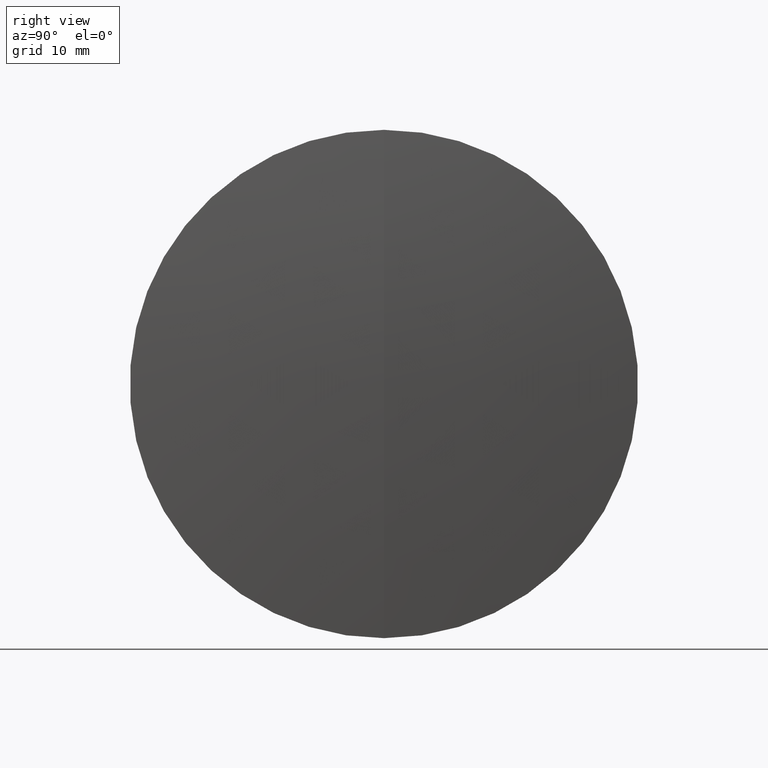
[diagram: clean part render]
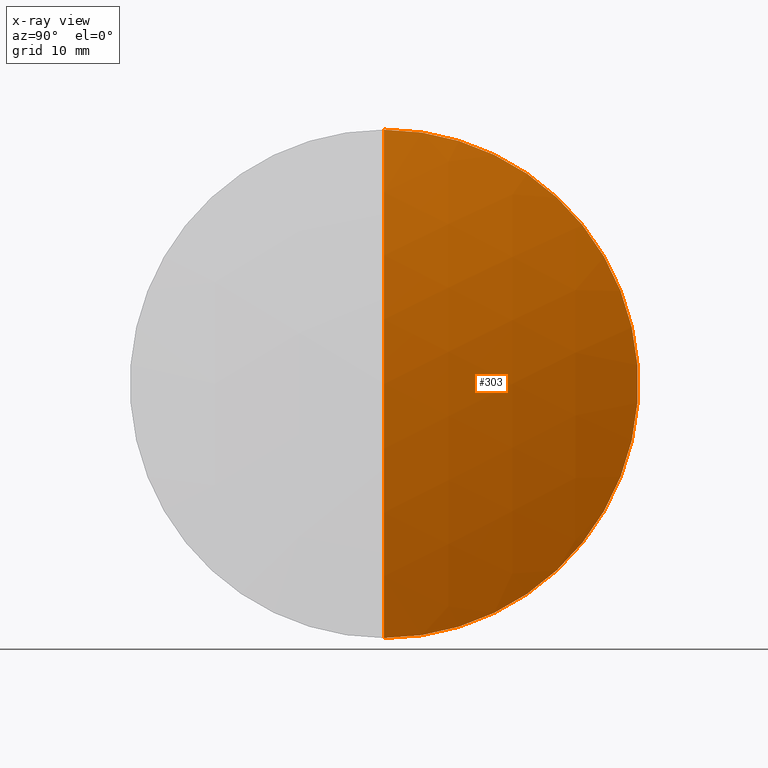
[diagram: x-ray — body ghosted, one internal face saturated and labeled with its STEP entity id]
A machine part, right view, then the same camera in x-ray: the body is ghosted and one INTERNAL B-rep face — a face not visible from any outside direction — is saturated and labeled: STEP entity #303.
In plain terms, the highlighted spherical surface has radius 80.7 mm.
Its self-contained STEP definition (entity closure, byte-faithful):
#15 = CARTESIAN_POINT ( 'NONE',  ( 265.8574619542142200, 0.0000000000000000000, 2.168404344971008900E-016 ) ) ;
#16 = EDGE_CURVE ( 'NONE', #259, #156, #198, .T. ) ;
#20 = DIRECTION ( 'NONE',  ( 0.0000000000000000000, 0.0000000000000000000, 1.000000000000000000 ) ) ;
#23 = DIRECTION ( 'NONE',  ( -1.000000000000000000, -0.0000000000000000000, -0.0000000000000000000 ) ) ;
#34 = EDGE_LOOP ( 'NONE', ( #342, #299, #287 ) ) ;
#58 = DIRECTION ( 'NONE',  ( 0.0000000000000000000, -1.000000000000000000, 0.0000000000000000000 ) ) ;
#60 = CARTESIAN_POINT ( 'NONE',  ( 342.4559606340186500, 0.0000000000000000000, 25.39999999999999500 ) ) ;
#73 = CIRCLE ( 'NONE', #75, 80.70000000000001700 ) ;
#75 = AXIS2_PLACEMENT_3D ( 'NONE', #15, #318, #216 ) ;
#114 = FACE_OUTER_BOUND ( 'NONE', #34, .T. ) ;
#128 = DIRECTION ( 'NONE',  ( 0.0000000000000000000, 0.0000000000000000000, 1.000000000000000000 ) ) ;
#133 = EDGE_CURVE ( 'NONE', #259, #251, #73, .T. ) ;
#154 = CARTESIAN_POINT ( 'NONE',  ( 342.4559606340186500, 3.110602869834276500E-015, -25.39999999999999500 ) ) ;
#156 = VERTEX_POINT ( 'NONE', #60 ) ;
#159 = DIRECTION ( 'NONE',  ( 0.0000000000000000000, 1.000000000000000000, 0.0000000000000000000 ) ) ;
#160 = CARTESIAN_POINT ( 'NONE',  ( 265.8574619542142200, 0.0000000000000000000, 2.168404344971008900E-016 ) ) ;
#171 = CIRCLE ( 'NONE', #249, 25.39999999999999500 ) ;
#181 = CARTESIAN_POINT ( 'NONE',  ( 342.4559606340186500, 0.0000000000000000000, 0.0000000000000000000 ) ) ;
#198 = CIRCLE ( 'NONE', #220, 80.70000000000001700 ) ;
#204 = DIRECTION ( 'NONE',  ( 0.0000000000000000000, 0.0000000000000000000, -1.000000000000000000 ) ) ;
#208 = CARTESIAN_POINT ( 'NONE',  ( 265.8574619542142200, 0.0000000000000000000, 2.168404344971008900E-016 ) ) ;
#216 = DIRECTION ( 'NONE',  ( 0.0000000000000000000, -1.224646799147353500E-016, 1.000000000000000000 ) ) ;
#220 = AXIS2_PLACEMENT_3D ( 'NONE', #208, #58, #204 ) ;
#221 = CARTESIAN_POINT ( 'NONE',  ( 346.5574619542142000, 0.0000000000000000000, 5.158290269056672600E-015 ) ) ;
#226 = SPHERICAL_SURFACE ( 'NONE', #229, 80.70000000000001700 ) ;
#229 = AXIS2_PLACEMENT_3D ( 'NONE', #160, #159, #20 ) ;
#244 = EDGE_CURVE ( 'NONE', #156, #251, #171, .T. ) ;
#249 = AXIS2_PLACEMENT_3D ( 'NONE', #181, #23, #128 ) ;
#251 = VERTEX_POINT ( 'NONE', #154 ) ;
#259 = VERTEX_POINT ( 'NONE', #221 ) ;
#287 = ORIENTED_EDGE ( 'NONE', *, *, #244, .F. ) ;
#299 = ORIENTED_EDGE ( 'NONE', *, *, #133, .T. ) ;
#303 = ADVANCED_FACE ( 'NONE', ( #114 ), #226, .T. ) ;
#318 = DIRECTION ( 'NONE',  ( -0.0000000000000000000, 1.000000000000000000, 1.224646799147353200E-016 ) ) ;
#342 = ORIENTED_EDGE ( 'NONE', *, *, #16, .F. ) ;